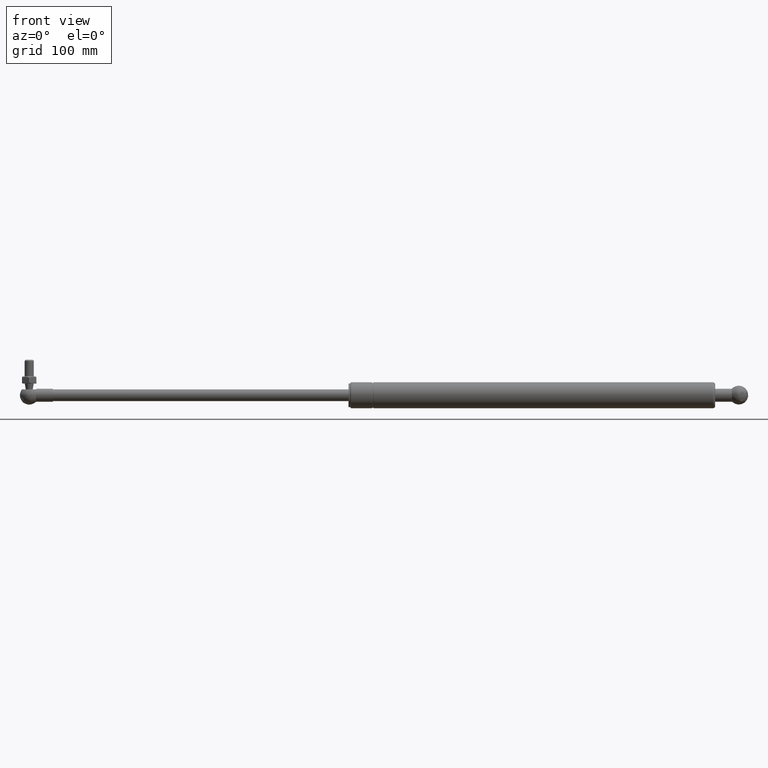
[diagram: clean part render]
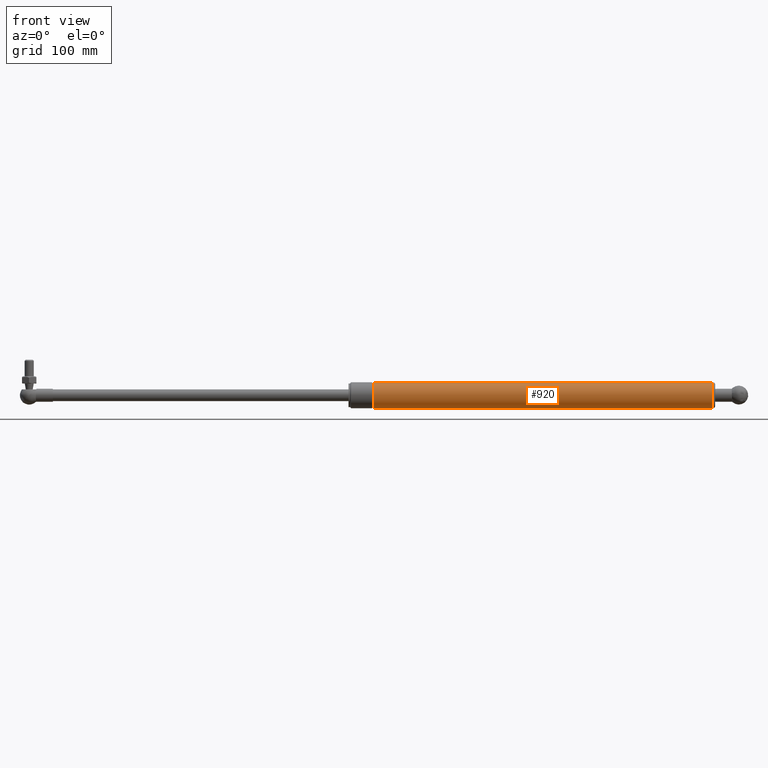
[diagram: same view with one face highlighted and labeled with its STEP entity id]
A machine part, front view. The second image highlights one B-rep face of the part: STEP entity #920.
In plain terms, the highlighted cylindrical surface (bore or boss wall) has radius 11 mm, axis along (1, 0, -0).
Its self-contained STEP definition (entity closure, byte-faithful):
#139=CYLINDRICAL_SURFACE('',#1018,11.);
#171=FACE_BOUND('',#306,.T.);
#220=FACE_OUTER_BOUND('',#305,.T.);
#305=EDGE_LOOP('',(#660));
#306=EDGE_LOOP('',(#661));
#387=CIRCLE('',#981,11.);
#405=CIRCLE('',#1016,11.);
#446=VERTEX_POINT('',#1440);
#464=VERTEX_POINT('',#1493);
#526=EDGE_CURVE('',#446,#446,#387,.T.);
#544=EDGE_CURVE('',#464,#464,#405,.T.);
#660=ORIENTED_EDGE('',*,*,#526,.T.);
#661=ORIENTED_EDGE('',*,*,#544,.F.);
#920=ADVANCED_FACE('',(#220,#171),#139,.T.);
#981=AXIS2_PLACEMENT_3D('',#1441,#1129,#1130);
#1016=AXIS2_PLACEMENT_3D('',#1494,#1199,#1200);
#1018=AXIS2_PLACEMENT_3D('',#1497,#1203,#1204);
#1129=DIRECTION('center_axis',(1.,0.,-1.20871055100319E-16));
#1130=DIRECTION('ref_axis',(1.22464679914735E-16,0.,1.));
#1199=DIRECTION('center_axis',(1.,0.,-1.22464679914735E-16));
#1200=DIRECTION('ref_axis',(-1.26161707343768E-16,-1.22464679914735E-16,
-1.));
#1203=DIRECTION('center_axis',(1.,0.,-1.22464679914735E-16));
#1204=DIRECTION('ref_axis',(1.22464679914735E-16,0.,1.));
#1440=CARTESIAN_POINT('',(21.,1.34711147906209E-15,-11.));
#1441=CARTESIAN_POINT('Origin',(21.,0.,-2.57175827820944E-15));
#1493=CARTESIAN_POINT('',(308.,0.,11.));
#1494=CARTESIAN_POINT('Origin',(308.,0.,-3.77191214137385E-14));
#1497=CARTESIAN_POINT('Origin',(156.,0.,-1.91044900666987E-14));